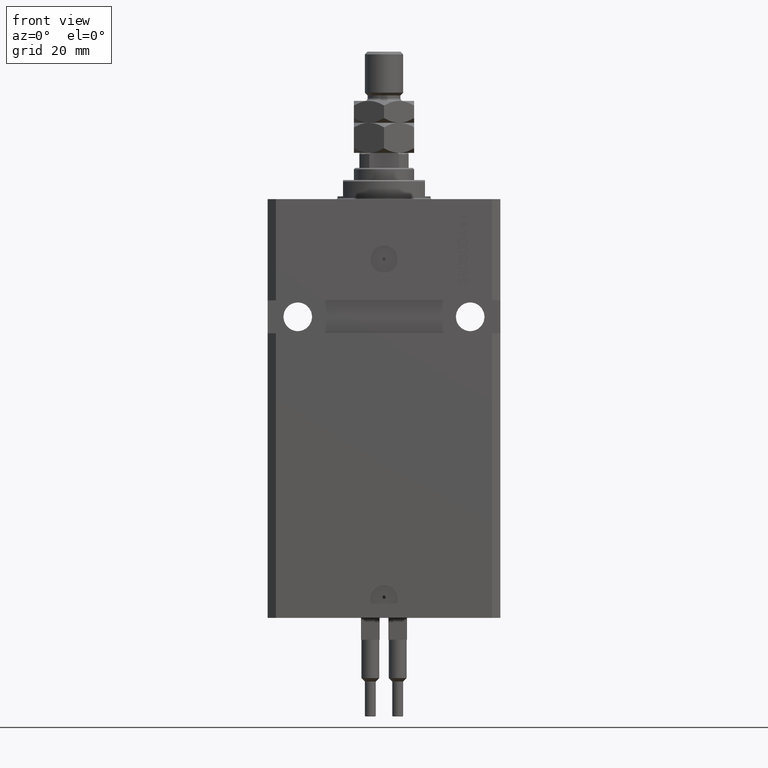
[diagram: clean part render]
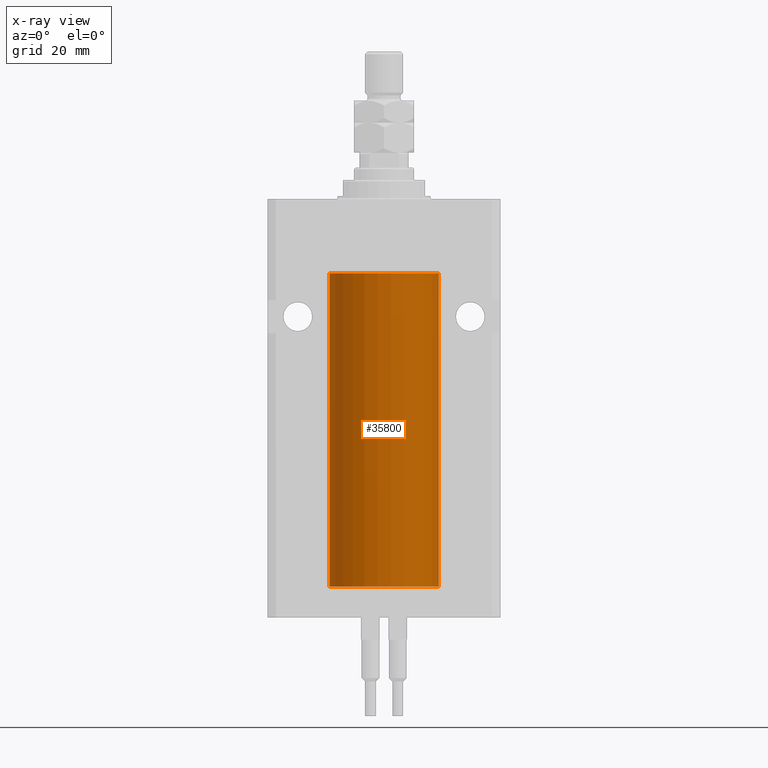
[diagram: x-ray — body ghosted, one internal face saturated and labeled with its STEP entity id]
A machine part, front view, then the same camera in x-ray: the body is ghosted and one INTERNAL B-rep face — a face not visible from any outside direction — is saturated and labeled: STEP entity #35800.
In plain terms, the highlighted cylindrical surface (partial cylindrical patch) has radius 20 mm, axis along (0, 0, 1).
Its self-contained STEP definition (entity closure, byte-faithful):
#314 = ORIENTED_EDGE ( 'NONE', *, *, #47678, .T. ) ;
#716 = EDGE_LOOP ( 'NONE', ( #27941, #25604, #6697, #29344, #20228, #12516, #46299, #314, #34531 ) ) ;
#981 = CARTESIAN_POINT ( 'NONE',  ( -20.00000000000000000, 2.449293598294706119E-15, -141.5999999999999943 ) ) ;
#1039 = CARTESIAN_POINT ( 'NONE',  ( 19.99766790699043995, -0.3264769477312507995, -138.4426606383000262 ) ) ;
#1530 = VERTEX_POINT ( 'NONE', #41816 ) ;
#1700 = DIRECTION ( 'NONE',  ( -0.000000000000000000, -0.000000000000000000, 1.000000000000000000 ) ) ;
#2080 = AXIS2_PLACEMENT_3D ( 'NONE', #39809, #4806, #20648 ) ;
#2774 = CARTESIAN_POINT ( 'NONE',  ( -19.99767054355995555, -0.3263099029014814301, -139.5574110824076683 ) ) ;
#3331 = AXIS2_PLACEMENT_3D ( 'NONE', #49936, #14947, #30512 ) ;
#4466 = CARTESIAN_POINT ( 'NONE',  ( 19.99766246719553209, -0.3267907458473790494, -139.5571608607968699 ) ) ;
#4491 = EDGE_CURVE ( 'NONE', #39373, #14770, #6487, .T. ) ;
#4720 = CARTESIAN_POINT ( 'NONE',  ( 20.00000000000000000, -0.1650670266421448706, -139.6250000000000000 ) ) ;
#4806 = DIRECTION ( 'NONE',  ( 0.000000000000000000, 0.000000000000000000, 1.000000000000000000 ) ) ;
#6229 = AXIS2_PLACEMENT_3D ( 'NONE', #25438, #1700, #44849 ) ;
#6487 = LINE ( 'NONE', #49662, #25751 ) ;
#6602 = CARTESIAN_POINT ( 'NONE',  ( -19.99023630310506761, -0.6248620367829762490, -139.1653813832952835 ) ) ;
#6697 = ORIENTED_EDGE ( 'NONE', *, *, #25179, .T. ) ;
#7153 = CARTESIAN_POINT ( 'NONE',  ( 20.00000000000000000, 0.000000000000000000, -141.5999999999999943 ) ) ;
#8325 = VERTEX_POINT ( 'NONE', #36059 ) ;
#8860 = LINE ( 'NONE', #43875, #47854 ) ;
#8924 = CARTESIAN_POINT ( 'NONE',  ( 20.00000000000010303, 3.555666311577537537E-13, -138.3749999999966178 ) ) ;
#9565 = EDGE_CURVE ( 'NONE', #38654, #18257, #8860, .T. ) ;
#10831 = DIRECTION ( 'NONE',  ( -0.000000000000000000, -0.000000000000000000, 1.000000000000000000 ) ) ;
#11150 = CARTESIAN_POINT ( 'NONE',  ( 19.99023198964933812, -0.6250000000000839329, -138.9999999999999432 ) ) ;
#12516 = ORIENTED_EDGE ( 'NONE', *, *, #9565, .F. ) ;
#14247 = VERTEX_POINT ( 'NONE', #15589 ) ;
#14770 = VERTEX_POINT ( 'NONE', #35320 ) ;
#14791 = CARTESIAN_POINT ( 'NONE',  ( -19.99765984516761819, -0.3269569594424134862, -138.4429100894329565 ) ) ;
#14947 = DIRECTION ( 'NONE',  ( 0.000000000000000000, 0.000000000000000000, 1.000000000000000000 ) ) ;
#15589 = CARTESIAN_POINT ( 'NONE',  ( 20.00000000000000000, -2.179639976041341418E-15, -139.6249999999999716 ) ) ;
#15590 = CIRCLE ( 'NONE', #3331, 20.00000000000000000 ) ;
#16809 = VERTEX_POINT ( 'NONE', #7153 ) ;
#16818 = B_SPLINE_CURVE_WITH_KNOTS ( 'NONE', 3,
 ( #27866, #39368, #1039, #32201, #47784, #36277 ),
 .UNSPECIFIED., .F., .F.,
 ( 4, 2, 4 ),
 ( 0.001954154509844120095, 0.002442840306376502235, 0.002931526102908884376 ),
 .UNSPECIFIED. ) ;
#17518 = FACE_OUTER_BOUND ( 'NONE', #716, .T. ) ;
#17575 = CIRCLE ( 'NONE', #2080, 20.00000000000000000 ) ;
#18257 = VERTEX_POINT ( 'NONE', #19894 ) ;
#18865 = CARTESIAN_POINT ( 'NONE',  ( -20.00000000000000355, -0.1651542110816557607, -138.3749999999999716 ) ) ;
#19027 = LINE ( 'NONE', #26943, #23693 ) ;
#19121 = CARTESIAN_POINT ( 'NONE',  ( -20.00000000000000000, -1.756252550797319649E-14, -138.3749999999999716 ) ) ;
#19638 = EDGE_CURVE ( 'NONE', #16809, #14247, #19027, .T. ) ;
#19701 = EDGE_CURVE ( 'NONE', #8325, #18257, #15590, .T. ) ;
#19894 = CARTESIAN_POINT ( 'NONE',  ( 20.00000000000000000, 0.000000000000000000, -27.10000000000000142 ) ) ;
#20228 = ORIENTED_EDGE ( 'NONE', *, *, #19701, .T. ) ;
#20648 = DIRECTION ( 'NONE',  ( 1.000000000000000000, 0.000000000000000000, 0.000000000000000000 ) ) ;
#21066 = CARTESIAN_POINT ( 'NONE',  ( 19.99256494106949944, -0.5573539455062642700, -139.3264613235960496 ) ) ;
#22448 = CARTESIAN_POINT ( 'NONE',  ( -19.99255948581289033, -0.5575529953197854161, -138.6738333567126915 ) ) ;
#22606 = EDGE_CURVE ( 'NONE', #38654, #31271, #16818, .T. ) ;
#22957 = CARTESIAN_POINT ( 'NONE',  ( -20.00000000000000355, -0.1631318982819167651, -139.6250000000001990 ) ) ;
#23693 = VECTOR ( 'NONE', #37924, 1000.000000000000000 ) ;
#24231 = LINE ( 'NONE', #981, #37294 ) ;
#25179 = EDGE_CURVE ( 'NONE', #14770, #1530, #43413, .T. ) ;
#25438 = CARTESIAN_POINT ( 'NONE',  ( 0.000000000000000000, 0.000000000000000000, -141.5999999999999943 ) ) ;
#25604 = ORIENTED_EDGE ( 'NONE', *, *, #4491, .T. ) ;
#25751 = VECTOR ( 'NONE', #10831, 1000.000000000000000 ) ;
#26943 = CARTESIAN_POINT ( 'NONE',  ( 20.00000000000000000, 0.000000000000000000, -141.5999999999999943 ) ) ;
#27866 = CARTESIAN_POINT ( 'NONE',  ( 20.00000000000010303, 3.555666311577537537E-13, -138.3749999999966178 ) ) ;
#27941 = ORIENTED_EDGE ( 'NONE', *, *, #33897, .F. ) ;
#28475 = CARTESIAN_POINT ( 'NONE',  ( 19.99023198964933812, -0.6250000000000839329, -138.9999999999999432 ) ) ;
#29344 = ORIENTED_EDGE ( 'NONE', *, *, #40472, .T. ) ;
#30512 = DIRECTION ( 'NONE',  ( 1.000000000000000000, 0.000000000000000000, 0.000000000000000000 ) ) ;
#31271 = VERTEX_POINT ( 'NONE', #11150 ) ;
#32128 = DIRECTION ( 'NONE',  ( -0.000000000000000000, -0.000000000000000000, 1.000000000000000000 ) ) ;
#32201 = CARTESIAN_POINT ( 'NONE',  ( 19.99257096259849931, -0.5571491910957772076, -138.6731986224609727 ) ) ;
#33897 = EDGE_CURVE ( 'NONE', #39373, #16809, #17575, .T. ) ;
#34531 = ORIENTED_EDGE ( 'NONE', *, *, #19638, .F. ) ;
#34701 = CARTESIAN_POINT ( 'NONE',  ( -19.99022768983530440, -0.6251375268966052889, -138.8356630308821593 ) ) ;
#35320 = CARTESIAN_POINT ( 'NONE',  ( -20.00000000000010303, 3.580159249456421507E-13, -139.6250000000033253 ) ) ;
#35800 = ADVANCED_FACE ( 'NONE', ( #17518 ), #44603, .F. ) ;
#36059 = CARTESIAN_POINT ( 'NONE',  ( -20.00000000000000000, 2.449293598294706119E-15, -27.10000000000000142 ) ) ;
#36277 = CARTESIAN_POINT ( 'NONE',  ( 19.99023198964933812, -0.6250000000000839329, -138.9999999999999432 ) ) ;
#37294 = VECTOR ( 'NONE', #40307, 1000.000000000000000 ) ;
#37924 = DIRECTION ( 'NONE',  ( -0.000000000000000000, -0.000000000000000000, 1.000000000000000000 ) ) ;
#38654 = VERTEX_POINT ( 'NONE', #8924 ) ;
#39368 = CARTESIAN_POINT ( 'NONE',  ( 20.00000000000000000, -0.1632180151482494623, -138.3749999999997442 ) ) ;
#39373 = VERTEX_POINT ( 'NONE', #41363 ) ;
#39809 = CARTESIAN_POINT ( 'NONE',  ( 0.000000000000000000, 0.000000000000000000, -141.5999999999999943 ) ) ;
#40307 = DIRECTION ( 'NONE',  ( -0.000000000000000000, -0.000000000000000000, 1.000000000000000000 ) ) ;
#40472 = EDGE_CURVE ( 'NONE', #1530, #8325, #24231, .T. ) ;
#41363 = CARTESIAN_POINT ( 'NONE',  ( -20.00000000000000000, 2.449293598294706119E-15, -141.5999999999999943 ) ) ;
#41816 = CARTESIAN_POINT ( 'NONE',  ( -20.00000000000000000, -1.756252550797319649E-14, -138.3749999999999716 ) ) ;
#42366 = CARTESIAN_POINT ( 'NONE',  ( -20.00000000000010303, 3.580159249456421507E-13, -139.6250000000033253 ) ) ;
#43413 = B_SPLINE_CURVE_WITH_KNOTS ( 'NONE', 3,
 ( #42366, #22957, #2774, #46448, #6602, #34701, #22448, #14791, #18865, #19121 ),
 .UNSPECIFIED., .F., .F.,
 ( 4, 2, 2, 2, 4 ),
 ( 0.001954154509844256704, 0.002442582466643830781, 0.002931010423443404424, 0.003419438380242978068, 0.003907866337042552145 ),
 .UNSPECIFIED. ) ;
#43805 = CARTESIAN_POINT ( 'NONE',  ( 19.99023198964934167, -0.6250000000000767164, -139.1647941998272131 ) ) ;
#43875 = CARTESIAN_POINT ( 'NONE',  ( 20.00000000000000000, 0.000000000000000000, -141.5999999999999943 ) ) ;
#44556 = CARTESIAN_POINT ( 'NONE',  ( 20.00000000000000000, -2.179639976041341418E-15, -139.6249999999999716 ) ) ;
#44603 = CYLINDRICAL_SURFACE ( 'NONE', #6229, 20.00000000000000000 ) ;
#44849 = DIRECTION ( 'NONE',  ( 1.000000000000000000, 0.000000000000000000, 0.000000000000000000 ) ) ;
#46299 = ORIENTED_EDGE ( 'NONE', *, *, #22606, .T. ) ;
#46448 = CARTESIAN_POINT ( 'NONE',  ( -19.99257639367449357, -0.5569510432580332404, -139.3270944862516671 ) ) ;
#47678 = EDGE_CURVE ( 'NONE', #31271, #14247, #48009, .T. ) ;
#47784 = CARTESIAN_POINT ( 'NONE',  ( 19.99023198964933812, -0.6250000000000911493, -138.8350317194948786 ) ) ;
#47854 = VECTOR ( 'NONE', #32128, 1000.000000000000000 ) ;
#48009 = B_SPLINE_CURVE_WITH_KNOTS ( 'NONE', 3,
 ( #28475, #43805, #21066, #4466, #4720, #44556 ),
 .UNSPECIFIED., .F., .F.,
 ( 4, 2, 4 ),
 ( 0.002931526102908884376, 0.003419696219975714574, 0.003907866337042544339 ),
 .UNSPECIFIED. ) ;
#49662 = CARTESIAN_POINT ( 'NONE',  ( -20.00000000000000000, 2.449293598294706119E-15, -141.5999999999999943 ) ) ;
#49936 = CARTESIAN_POINT ( 'NONE',  ( 0.000000000000000000, 0.000000000000000000, -27.10000000000000142 ) ) ;